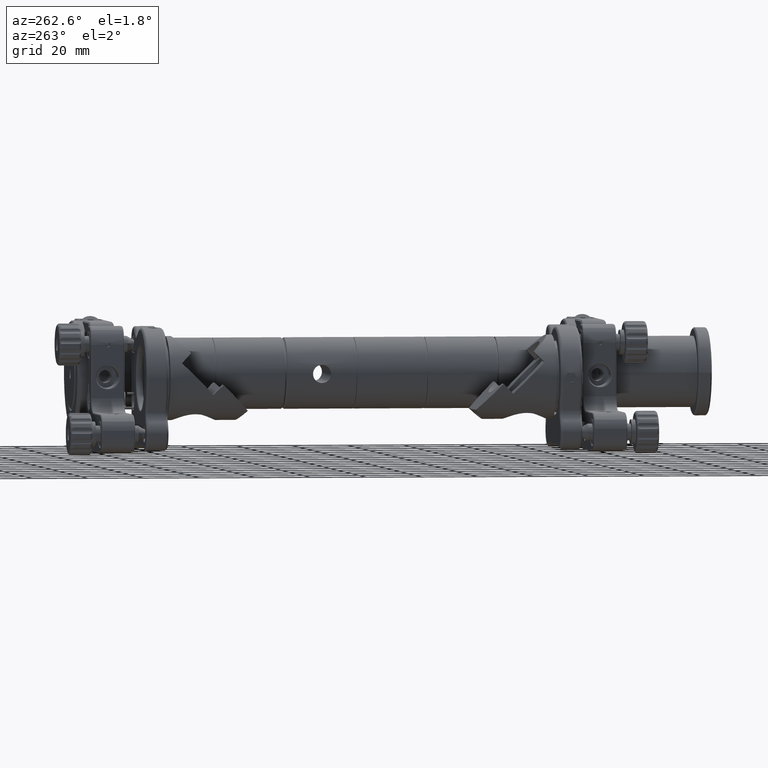
[diagram: clean part render]
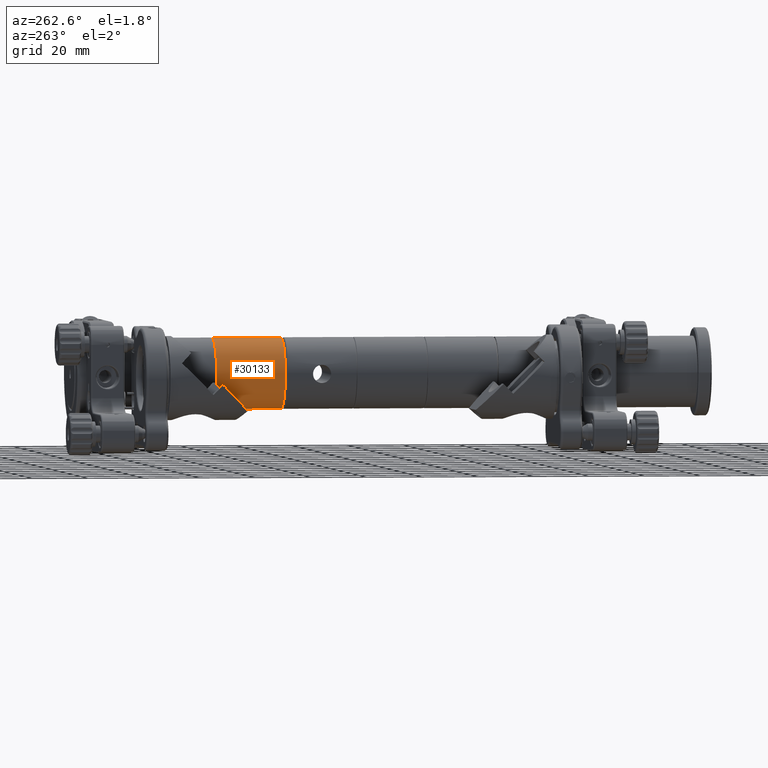
[diagram: same view with one face highlighted and labeled with its STEP entity id]
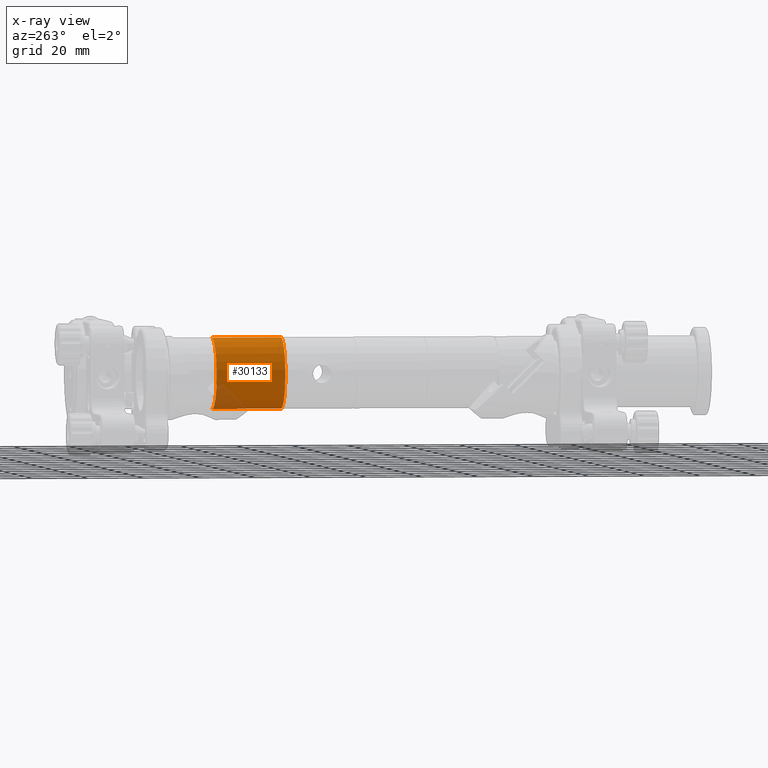
[diagram: x-ray of the same camera — body ghosted, the highlighted face saturated]
A machine part, auxiliary view. The second image highlights one B-rep face of the part: STEP entity #30133.
The next image is the same camera in x-ray: the body ghosted, the highlighted face saturated — about 10% of this face is hidden behind the body in this view.
In plain terms, the highlighted cylindrical surface (edge-blend (fillet) strip) has radius 12.75 mm, axis along (-0, -1, -0).
Its self-contained STEP definition (entity closure, byte-faithful):
#644 = VERTEX_POINT ( 'NONE', #7621 ) ;
#4024 = CARTESIAN_POINT ( 'NONE',  ( 0.0000000000000000000, -55.21470252475409500, 12.75000000000000000 ) ) ;
#7227 = LINE ( 'NONE', #55160, #58146 ) ;
#7621 = CARTESIAN_POINT ( 'NONE',  ( 1.561424668912875100E-015, -55.21470252475409500, -12.75000000000000000 ) ) ;
#9329 = ORIENTED_EDGE ( 'NONE', *, *, #14985, .T. ) ;
#11137 = AXIS2_PLACEMENT_3D ( 'NONE', #49751, #31778, #18479 ) ;
#11517 = EDGE_CURVE ( 'NONE', #25318, #28201, #46346, .T. ) ;
#14903 = EDGE_CURVE ( 'NONE', #28201, #40764, #19907, .T. ) ;
#14985 = EDGE_CURVE ( 'NONE', #25318, #644, #7227, .T. ) ;
#16918 = CIRCLE ( 'NONE', #11137, 12.75000000000000000 ) ;
#18478 = AXIS2_PLACEMENT_3D ( 'NONE', #58615, #45587, #58420 ) ;
#18479 = DIRECTION ( 'NONE',  ( 0.0000000000000000000, 0.0000000000000000000, -1.000000000000000000 ) ) ;
#19907 = LINE ( 'NONE', #27144, #48271 ) ;
#22050 = EDGE_LOOP ( 'NONE', ( #51713, #34180, #9329, #38752 ) ) ;
#25318 = VERTEX_POINT ( 'NONE', #48555 ) ;
#27144 = CARTESIAN_POINT ( 'NONE',  ( 1.561424668912874900E-015, -63.76289373922437400, 12.74999999999999800 ) ) ;
#28201 = VERTEX_POINT ( 'NONE', #51096 ) ;
#30133 = ADVANCED_FACE ( 'NONE', ( #36843 ), #34047, .T. ) ;
#31778 = DIRECTION ( 'NONE',  ( -0.0000000000000000000, -1.000000000000000000, -0.0000000000000000000 ) ) ;
#34034 = AXIS2_PLACEMENT_3D ( 'NONE', #42933, #42353, #34052 ) ;
#34047 = CYLINDRICAL_SURFACE ( 'NONE', #34034, 12.74999999999999800 ) ;
#34052 = DIRECTION ( 'NONE',  ( 0.0000000000000000000, 0.0000000000000000000, -1.000000000000000000 ) ) ;
#34180 = ORIENTED_EDGE ( 'NONE', *, *, #11517, .F. ) ;
#36618 = DIRECTION ( 'NONE',  ( -0.0000000000000000000, -1.000000000000000000, -0.0000000000000000000 ) ) ;
#36843 = FACE_OUTER_BOUND ( 'NONE', #22050, .T. ) ;
#36962 = EDGE_CURVE ( 'NONE', #40764, #644, #16918, .T. ) ;
#38752 = ORIENTED_EDGE ( 'NONE', *, *, #36962, .F. ) ;
#40764 = VERTEX_POINT ( 'NONE', #4024 ) ;
#42353 = DIRECTION ( 'NONE',  ( -0.0000000000000000000, -1.000000000000000000, -0.0000000000000000000 ) ) ;
#42933 = CARTESIAN_POINT ( 'NONE',  ( 0.0000000000000000000, -63.76289373922437400, 0.0000000000000000000 ) ) ;
#44738 = DIRECTION ( 'NONE',  ( -0.0000000000000000000, -1.000000000000000000, -0.0000000000000000000 ) ) ;
#45587 = DIRECTION ( 'NONE',  ( -0.0000000000000000000, 1.000000000000000000, -0.0000000000000000000 ) ) ;
#46346 = CIRCLE ( 'NONE', #18478, 12.75000000000000200 ) ;
#48271 = VECTOR ( 'NONE', #44738, 1000.000000000000000 ) ;
#48555 = CARTESIAN_POINT ( 'NONE',  ( 0.0000000000000000000, -30.51470252475409200, -12.75000000000000200 ) ) ;
#49751 = CARTESIAN_POINT ( 'NONE',  ( 0.0000000000000000000, -55.21470252475409500, 0.0000000000000000000 ) ) ;
#51096 = CARTESIAN_POINT ( 'NONE',  ( 1.561424668912875500E-015, -30.51470252475409200, 12.75000000000000200 ) ) ;
#51713 = ORIENTED_EDGE ( 'NONE', *, *, #14903, .F. ) ;
#55160 = CARTESIAN_POINT ( 'NONE',  ( 0.0000000000000000000, -63.76289373922437400, -12.74999999999999800 ) ) ;
#58146 = VECTOR ( 'NONE', #36618, 1000.000000000000000 ) ;
#58420 = DIRECTION ( 'NONE',  ( 0.0000000000000000000, 0.0000000000000000000, 1.000000000000000000 ) ) ;
#58615 = CARTESIAN_POINT ( 'NONE',  ( 0.0000000000000000000, -30.51470252475409200, 0.0000000000000000000 ) ) ;